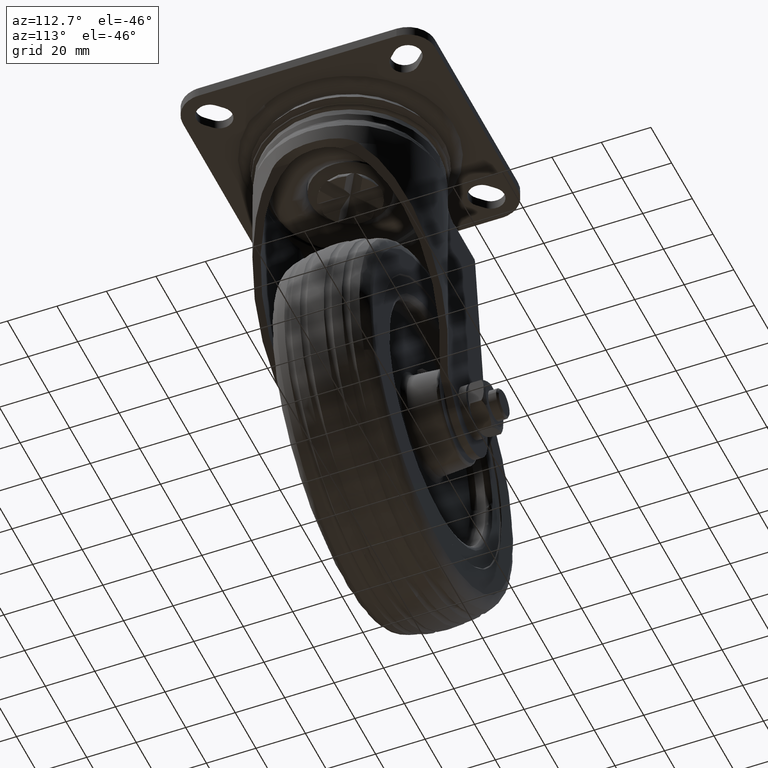
[diagram: clean part render]
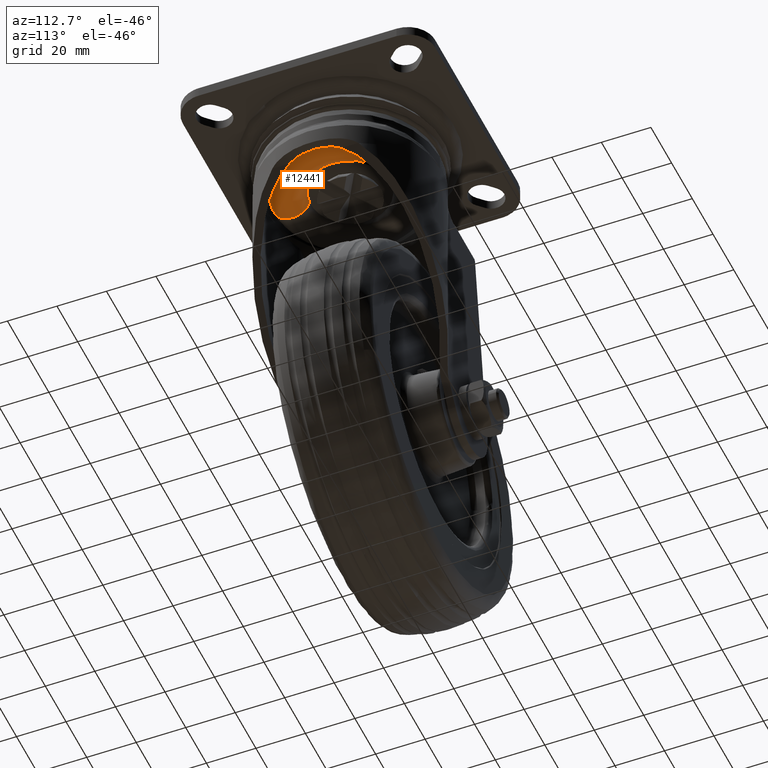
[diagram: same view with one face highlighted and labeled with its STEP entity id]
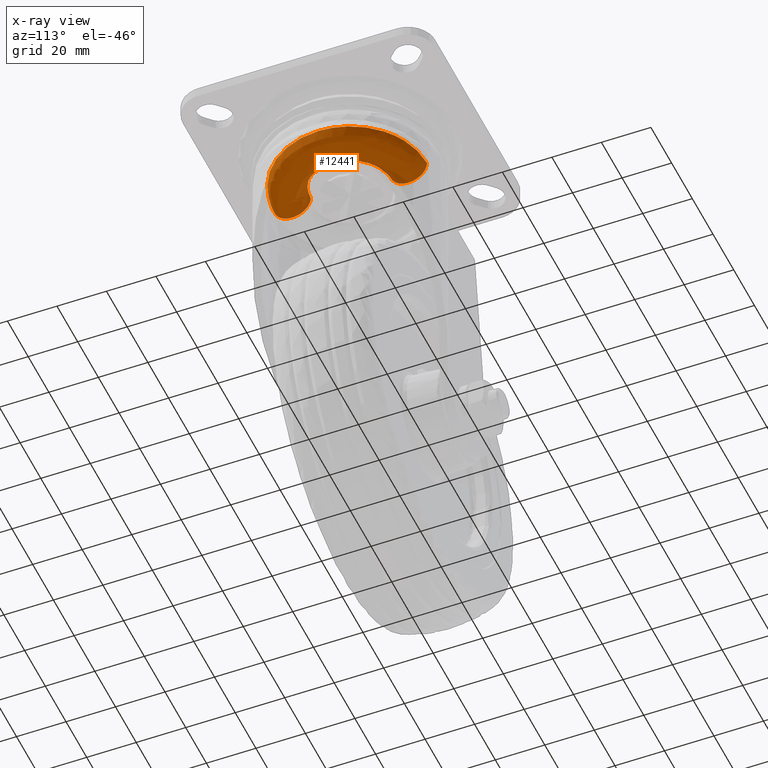
[diagram: x-ray of the same camera — body ghosted, the highlighted face saturated]
A machine part, auxiliary view. The second image highlights one B-rep face of the part: STEP entity #12441.
The next image is the same camera in x-ray: the body ghosted, the highlighted face saturated — about 2% of this face is hidden behind the body in this view.
In plain terms, the highlighted face is a freeform B-spline surface patch.
Its self-contained STEP definition (entity closure, byte-faithful):
#11933=CARTESIAN_POINT('',(0.0,16.0,-19.850009000236430));
#11934=VERTEX_POINT('',#11933);
#11948=CARTESIAN_POINT('',(16.0,0.0,-19.850009000000000));
#11949=VERTEX_POINT('',#11948);
#11950=CARTESIAN_POINT('',(0.0,16.0,-19.850009000236430));
#11951=CARTESIAN_POINT('',(15.999999999999998,15.999999999999998,-19.850009000118213));
#11952=CARTESIAN_POINT('',(16.0,0.0,-19.850009000000000));
#11960=(BOUNDED_CURVE()B_SPLINE_CURVE(2,(#11950,#11951,#11952),.UNSPECIFIED.,.F.,.U.)B_SPLINE_CURVE_WITH_KNOTS((3,3),(0.250000000000000,0.500000000000000),.UNSPECIFIED.)CURVE()GEOMETRIC_REPRESENTATION_ITEM()RATIONAL_B_SPLINE_CURVE((1.0,0.707106781186548,1.0))REPRESENTATION_ITEM(''));
#11961=EDGE_CURVE('',#11934,#11949,#11960,.T.);
#11963=CARTESIAN_POINT('',(11.605991868503240,-11.013671174873011,-19.850009000113769));
#11964=VERTEX_POINT('',#11963);
#11965=CARTESIAN_POINT('',(16.0,0.0,-19.850009000000000));
#11966=CARTESIAN_POINT('',(15.999999999999998,-6.383351108605687,-19.850009000047169));
#11967=CARTESIAN_POINT('',(11.605991868503425,-11.013671174873181,-19.850009000113836));
#11975=(BOUNDED_CURVE()B_SPLINE_CURVE(2,(#11965,#11966,#11967),.UNSPECIFIED.,.F.,.U.)B_SPLINE_CURVE_WITH_KNOTS((3,3),(0.500000000000000,0.621049500181753),.UNSPECIFIED.)CURVE()GEOMETRIC_REPRESENTATION_ITEM()RATIONAL_B_SPLINE_CURVE((1.0,0.858181689024027,0.853699663330150))REPRESENTATION_ITEM(''));
#11976=EDGE_CURVE('',#11949,#11964,#11975,.T.);
#12030=CARTESIAN_POINT('',(8.733946E-016,-16.0,-19.850009000236430));
#12031=VERTEX_POINT('',#12030);
#12032=CARTESIAN_POINT('',(11.605991868503242,-11.013671174873011,-19.850009000113779));
#12033=CARTESIAN_POINT('',(6.874144158117249,-16.000000000000004,-19.850009000185636));
#12034=CARTESIAN_POINT('',(8.733946E-016,-16.0,-19.850009000236430));
#12042=(BOUNDED_CURVE()B_SPLINE_CURVE(2,(#12032,#12033,#12034),.UNSPECIFIED.,.F.,.U.)B_SPLINE_CURVE_WITH_KNOTS((3,3),(0.621049500181753,0.750000000000000),.UNSPECIFIED.)CURVE()GEOMETRIC_REPRESENTATION_ITEM()RATIONAL_B_SPLINE_CURVE((0.853699663330150,0.848925092162520,1.0))REPRESENTATION_ITEM(''));
#12043=EDGE_CURVE('',#11964,#12031,#12042,.T.);
#12256=CARTESIAN_POINT('',(5.856764E-014,-30.999999999999989,-19.850009001060901));
#12257=VERTEX_POINT('',#12256);
#12258=CARTESIAN_POINT('',(5.856764E-014,-30.999999999999989,-19.850009001060901));
#12259=CARTESIAN_POINT('',(-3.275128E-014,-31.000519253633922,-20.678417217759961));
#12260=CARTESIAN_POINT('',(1.827658E-014,-30.789412284278129,-21.935881398318688));
#12261=CARTESIAN_POINT('',(6.195729E-016,-30.065498528185831,-23.568635067946250));
#12262=CARTESIAN_POINT('',(3.684953E-015,-29.114924151140350,-24.936627710544990));
#12263=CARTESIAN_POINT('',(3.168386E-015,-27.831248030842140,-26.057565758977930));
#12264=CARTESIAN_POINT('',(3.336283E-015,-26.195537646605651,-26.919043768302760));
#12265=CARTESIAN_POINT('',(3.522729E-015,-24.578997186310801,-27.345073139728768));
#12266=CARTESIAN_POINT('',(3.487400E-015,-22.882737481660289,-27.376182878121998));
#12267=CARTESIAN_POINT('',(3.079847E-015,-21.549260558825200,-27.127886741146881));
#12268=CARTESIAN_POINT('',(2.783574E-015,-20.249242752794721,-26.653761520487059));
#12269=CARTESIAN_POINT('',(2.507389E-015,-19.155827649846380,-26.016514397078598));
#12270=CARTESIAN_POINT('',(2.273945E-015,-17.991073161844419,-25.011825006007872));
#12271=CARTESIAN_POINT('',(1.908270E-015,-17.040140212670341,-23.793436771020911));
#12272=CARTESIAN_POINT('',(1.898296E-015,-16.217542199446768,-21.997296175273309));
#12273=CARTESIAN_POINT('',(1.904248E-015,-15.999502751531359,-20.647747987226051));
#12274=CARTESIAN_POINT('',(8.733946E-016,-16.0,-19.850009000236430));
#12275=B_SPLINE_CURVE_WITH_KNOTS('',3,(#12258,#12259,#12260,#12261,#12262,#12263,#12264,#12265,#12266,#12267,#12268,#12269,#12270,#12271,#12272,#12273,#12274),.UNSPECIFIED.,.F.,.U.,(4,1,1,1,1,1,1,1,1,1,1,1,1,1,4),(0.000000724177138,2.484986073993518,3.773580257765893,5.338294751236433,7.455241023823348,8.835894549269559,10.860685652042131,12.425204141453809,13.897838237783120,14.910383711485331,16.567047520906510,17.671565457922441,19.512393105297779,21.169072509276521,23.562092742072299),.UNSPECIFIED.);
#12276=EDGE_CURVE('',#12257,#12031,#12275,.T.);
#12308=CARTESIAN_POINT('',(-5.684342E-014,30.999999999999989,-19.850009001060901));
#12309=VERTEX_POINT('',#12308);
#12323=CARTESIAN_POINT('',(-5.684342E-014,30.999999999999989,-19.850009001060901));
#12324=CARTESIAN_POINT('',(3.726963E-014,31.000519253633922,-20.678417217759961));
#12325=CARTESIAN_POINT('',(-1.543040E-014,30.789412284278129,-21.935881398318688));
#12326=CARTESIAN_POINT('',(2.720940E-015,30.065498528185831,-23.568635067946250));
#12327=CARTESIAN_POINT('',(-4.622074E-016,29.114924151140350,-24.936627710544990));
#12328=CARTESIAN_POINT('',(1.132782E-016,27.831248030842140,-26.057565758977930));
#12329=CARTESIAN_POINT('',(-1.640255E-017,26.195537646605651,-26.919043768302760));
#12330=CARTESIAN_POINT('',(-2.973401E-021,24.578997186310801,-27.345073139728768));
#12331=CARTESIAN_POINT('',(3.724151E-022,22.882737481660289,-27.376182878121998));
#12332=CARTESIAN_POINT('',(7.649357E-024,21.549260558825200,-27.127886741146881));
#12333=CARTESIAN_POINT('',(-1.483060E-024,20.249242752794721,-26.653761520487059));
#12334=CARTESIAN_POINT('',(4.486048E-025,19.155827649846380,-26.016514397078598));
#12335=CARTESIAN_POINT('',(-1.505525E-025,17.991073161844419,-25.011825006007872));
#12336=CARTESIAN_POINT('',(4.468357E-026,17.040140212670341,-23.793436771020911));
#12337=CARTESIAN_POINT('',(-1.688743E-026,16.217542199446768,-21.997296175273309));
#12338=CARTESIAN_POINT('',(4.270249E-027,15.999502751531359,-20.647747987226051));
#12339=CARTESIAN_POINT('',(0.0,16.0,-19.850009000236430));
#12340=B_SPLINE_CURVE_WITH_KNOTS('',3,(#12323,#12324,#12325,#12326,#12327,#12328,#12329,#12330,#12331,#12332,#12333,#12334,#12335,#12336,#12337,#12338,#12339),.UNSPECIFIED.,.F.,.U.,(4,1,1,1,1,1,1,1,1,1,1,1,1,1,4),(0.000000724177138,2.484986073993518,3.773580257765893,5.338294751236433,7.455241023823348,8.835894549269559,10.860685652042131,12.425204141453809,13.897838237783120,14.910383711485331,16.567047520906510,17.671565457922441,19.512393105297779,21.169072509276521,23.562092742072299),.UNSPECIFIED.);
#12341=EDGE_CURVE('',#12309,#11934,#12340,.T.);
#12348=CARTESIAN_POINT('',(-0.864541024722447,30.924245677427713,-18.786723468641707));
#12349=CARTESIAN_POINT('',(-0.434787947602278,30.924245677427709,-18.786723468641707));
#12350=CARTESIAN_POINT('',(30.924245677427706,30.924245677427706,-18.786723468641718));
#12351=CARTESIAN_POINT('',(30.924245677427713,1.893501E-015,-18.786723468641707));
#12352=CARTESIAN_POINT('',(30.924245677427720,-30.924245677427706,-18.786723468641718));
#12353=CARTESIAN_POINT('',(-0.434787947602264,-30.924245677427713,-18.786723468641707));
#12354=CARTESIAN_POINT('',(-0.864541024722424,-30.924245677427709,-18.786723468641704));
#12355=CARTESIAN_POINT('',(-0.899046049329014,32.158474970805344,-27.404560565143921));
#12356=CARTESIAN_POINT('',(-0.452140934217889,32.158474970805351,-27.404560565143928));
#12357=CARTESIAN_POINT('',(32.158474970805351,32.158474970805351,-27.404560565143928));
#12358=CARTESIAN_POINT('',(32.158474970805344,1.969074E-015,-27.404560565143914));
#12359=CARTESIAN_POINT('',(32.158474970805351,-32.158474970805329,-27.404560565143928));
#12360=CARTESIAN_POINT('',(-0.452140934217875,-32.158474970805337,-27.404560565143914));
#12361=CARTESIAN_POINT('',(-0.899046049328990,-32.158474970805344,-27.404560565143914));
#12362=CARTESIAN_POINT('',(-0.655665914200743,23.452876420258288,-27.349860956421015));
#12363=CARTESIAN_POINT('',(-0.329742174166499,23.452876420258299,-27.349860956421029));
#12364=CARTESIAN_POINT('',(23.452876420258292,23.452876420258292,-27.349860956421022));
#12365=CARTESIAN_POINT('',(23.452876420258299,1.436027E-015,-27.349860956421029));
#12366=CARTESIAN_POINT('',(23.452876420258306,-23.452876420258292,-27.349860956421022));
#12367=CARTESIAN_POINT('',(-0.329742174166489,-23.452876420258299,-27.349860956421029));
#12368=CARTESIAN_POINT('',(-0.655665914200726,-23.452876420258299,-27.349860956421033));
#12369=CARTESIAN_POINT('',(-0.415185355867875,14.850994434475064,-27.295813026669748));
#12370=CARTESIAN_POINT('',(-0.208801645717470,14.850994434475064,-27.295813026669752));
#12371=CARTESIAN_POINT('',(14.850994434475062,14.850994434475062,-27.295813026669741));
#12372=CARTESIAN_POINT('',(14.850994434475064,9.093311E-016,-27.295813026669755));
#12373=CARTESIAN_POINT('',(14.850994434475062,-14.850994434475059,-27.295813026669741));
#12374=CARTESIAN_POINT('',(-0.208801645717463,-14.850994434475064,-27.295813026669755));
#12375=CARTESIAN_POINT('',(-0.415185355867864,-14.850994434475064,-27.295813026669755));
#12376=CARTESIAN_POINT('',(-0.449446589005954,16.076503416091867,-18.781506089987857));
#12377=CARTESIAN_POINT('',(-0.226032026708598,16.076503416091874,-18.781506089987861));
#12378=CARTESIAN_POINT('',(16.076503416091867,16.076503416091867,-18.781506089987865));
#12379=CARTESIAN_POINT('',(16.076503416091867,9.843694E-016,-18.781506089987865));
#12380=CARTESIAN_POINT('',(16.076503416091867,-16.076503416091867,-18.781506089987865));
#12381=CARTESIAN_POINT('',(-0.226032026708591,-16.076503416091874,-18.781506089987861));
#12382=CARTESIAN_POINT('',(-0.449446589005942,-16.076503416091871,-18.781506089987854));
#12390=(BOUNDED_SURFACE()B_SPLINE_SURFACE(2,2,((#12348,#12355,#12362,#12369,#12376),(#12349,#12356,#12363,#12370,#12377),(#12350,#12357,#12364,#12371,#12378),(#12351,#12358,#12365,#12372,#12379),(#12352,#12359,#12366,#12373,#12380),(#12353,#12360,#12367,#12374,#12381),(#12354,#12361,#12368,#12375,#12382)),.UNSPECIFIED.,.F.,.F.,.U.)B_SPLINE_SURFACE_WITH_KNOTS((3,1,2,1,3),(3,2,3),(0.0,1.024739357259873,52.261707220252347,103.498675083244810,104.523414440504690),(0.0,13.754678684022579,27.402714897710538),.UNSPECIFIED.)GEOMETRIC_REPRESENTATION_ITEM()RATIONAL_B_SPLINE_SURFACE(((0.997364038925622,0.655637655299653,1.011715728752539,0.658398391937516,0.992107054316682),(0.991589271263368,0.651841493635293,1.005857864376269,0.654586245525322,0.986362724752790),(0.697076120488398,0.458237248752934,0.707106781186548,0.460166778503460,0.693401916994340),(0.985814503601113,0.648045331970933,1.0,0.650774099113129,0.980618395188899),(0.697076120488398,0.458237248752934,0.707106781186548,0.460166778503460,0.693401916994340),(0.991589271263368,0.651841493635293,1.005857864376269,0.654586245525322,0.986362724752790),(0.997364038925622,0.655637655299653,1.011715728752538,0.658398391937516,0.992107054316681)))REPRESENTATION_ITEM('')SURFACE());
#12391=ORIENTED_EDGE('',*,*,#12043,.F.);
#12392=ORIENTED_EDGE('',*,*,#11976,.F.);
#12393=ORIENTED_EDGE('',*,*,#11961,.F.);
#12394=ORIENTED_EDGE('',*,*,#12341,.F.);
#12395=CARTESIAN_POINT('',(21.338989722968531,22.486607516542701,-19.850009000549932));
#12396=VERTEX_POINT('',#12395);
#12397=CARTESIAN_POINT('',(-5.684342E-014,30.999999999999986,-19.850009001060897));
#12398=CARTESIAN_POINT('',(12.367744228448755,31.000000000000021,-19.850009000849266));
#12399=CARTESIAN_POINT('',(21.338989722968620,22.486607516542804,-19.850009000550084));
#12407=(BOUNDED_CURVE()B_SPLINE_CURVE(2,(#12397,#12398,#12399),.UNSPECIFIED.,.F.,.U.)B_SPLINE_CURVE_WITH_KNOTS((3,3),(0.250000000000000,0.371049512407391),.UNSPECIFIED.)CURVE()GEOMETRIC_REPRESENTATION_ITEM()RATIONAL_B_SPLINE_CURVE((1.000000000000001,0.858181674700801,0.853699662424809))REPRESENTATION_ITEM(''));
#12408=EDGE_CURVE('',#12309,#12396,#12407,.T.);
#12409=ORIENTED_EDGE('',*,*,#12408,.T.);
#12410=CARTESIAN_POINT('',(31.0,0.0,-19.850009000000000));
#12411=VERTEX_POINT('',#12410);
#12412=CARTESIAN_POINT('',(21.338989722968524,22.486607516542701,-19.850009000549921));
#12413=CARTESIAN_POINT('',(31.000000000000007,13.318652818912096,-19.850009000227899));
#12414=CARTESIAN_POINT('',(31.0,0.0,-19.850009000000000));
#12422=(BOUNDED_CURVE()B_SPLINE_CURVE(2,(#12412,#12413,#12414),.UNSPECIFIED.,.F.,.U.)B_SPLINE_CURVE_WITH_KNOTS((3,3),(0.371049512407391,0.500000000000000),.UNSPECIFIED.)CURVE()GEOMETRIC_REPRESENTATION_ITEM()RATIONAL_B_SPLINE_CURVE((0.853699662424809,0.848925106485747,1.0))REPRESENTATION_ITEM(''));
#12423=EDGE_CURVE('',#12396,#12411,#12422,.T.);
#12424=ORIENTED_EDGE('',*,*,#12423,.T.);
#12425=CARTESIAN_POINT('',(31.0,0.0,-19.850009000000000));
#12426=CARTESIAN_POINT('',(31.000000000000004,-30.999999999999932,-19.850009000530445));
#12427=CARTESIAN_POINT('',(5.856764E-014,-30.999999999999989,-19.850009001060897));
#12435=(BOUNDED_CURVE()B_SPLINE_CURVE(2,(#12425,#12426,#12427),.UNSPECIFIED.,.F.,.U.)B_SPLINE_CURVE_WITH_KNOTS((3,3),(0.500000000000000,0.750000000000000),.UNSPECIFIED.)CURVE()GEOMETRIC_REPRESENTATION_ITEM()RATIONAL_B_SPLINE_CURVE((1.0,0.707106781186548,0.999999999999999))REPRESENTATION_ITEM(''));
#12436=EDGE_CURVE('',#12411,#12257,#12435,.T.);
#12437=ORIENTED_EDGE('',*,*,#12436,.T.);
#12438=ORIENTED_EDGE('',*,*,#12276,.T.);
#12439=EDGE_LOOP('',(#12391,#12392,#12393,#12394,#12409,#12424,#12437,#12438));
#12440=FACE_OUTER_BOUND('',#12439,.T.);
#12441=ADVANCED_FACE('',(#12440),#12390,.T.);